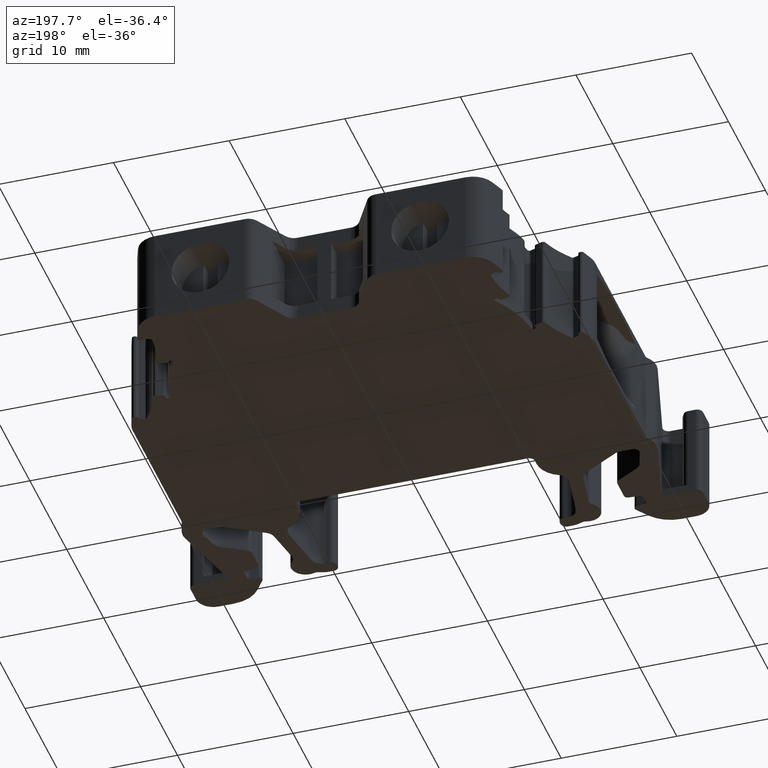
[diagram: clean part render]
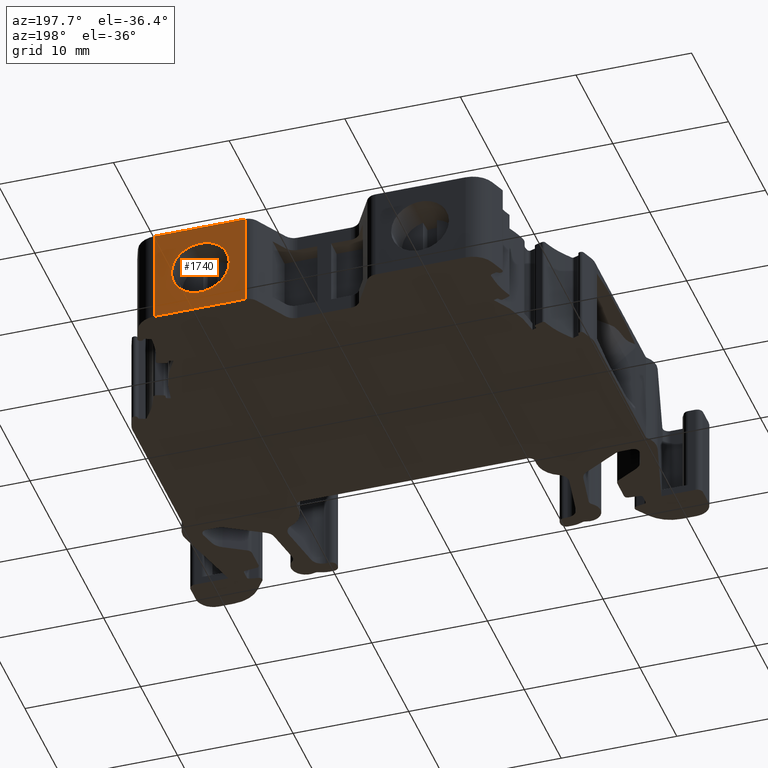
[diagram: same view with one face highlighted and labeled with its STEP entity id]
A machine part, auxiliary view. The second image highlights one B-rep face of the part: STEP entity #1740.
In plain terms, the highlighted planar face has unit normal (-0, -1, -0).
Its self-contained STEP definition (entity closure, byte-faithful):
#1131 = EDGE_CURVE ( 'NONE', #11786, #11818, #8824, .T. ) ;
#1327 = EDGE_CURVE ( 'NONE', #11513, #11482, #2718, .T. ) ;
#1580 = EDGE_CURVE ( 'NONE', #11648, #11571, #3573, .T. ) ;
#1611 = EDGE_CURVE ( 'NONE', #11482, #11648, #3743, .T. ) ;
#1616 = EDGE_CURVE ( 'NONE', #11571, #11513, #3703, .T. ) ;
#1740 = ADVANCED_FACE ( 'NONE', ( #4267, #4269 ), #4278, .F. ) ;
#1904 = DIRECTION ( 'NONE',  ( 3.335145295546514900E-014, 1.000000000000000000, 2.107248019183955000E-029 ) ) ;
#1939 = CARTESIAN_POINT ( 'NONE',  ( 1469.678072462780200, 957.4718304239120200, 1.164415195073409800 ) ) ;
#1952 = DIRECTION ( 'NONE',  ( -1.000000000000000000, 4.440892098500720800E-014, 0.0000000000000000000 ) ) ;
#2718 = LINE ( 'NONE', #2719, #8979 ) ;
#2719 = CARTESIAN_POINT ( 'NONE',  ( 1442.757947288439900, 957.4718304239130500, 5.263821926006720300 ) ) ;
#2793 = DIRECTION ( 'NONE',  ( -1.000000000000000000, -0.0000000000000000000, 0.0000000000000000000 ) ) ;
#3573 = LINE ( 'NONE', #3585, #9284 ) ;
#3579 = DIRECTION ( 'NONE',  ( 1.000000000000000000, -0.0000000000000000000, 3.944304526105060400E-030 ) ) ;
#3585 = CARTESIAN_POINT ( 'NONE',  ( 1441.684277564590500, 957.4718304239122500, -2.935584425860235900 ) ) ;
#3703 = LINE ( 'NONE', #3727, #9258 ) ;
#3723 = CARTESIAN_POINT ( 'NONE',  ( 1465.826193009918100, 957.4718304239123700, -3.335584383726600200 ) ) ;
#3724 = DIRECTION ( 'NONE',  ( 7.027978317731079600E-043, 2.107248019183955000E-029, -1.000000000000000000 ) ) ;
#3727 = CARTESIAN_POINT ( 'NONE',  ( 1473.620055561186100, 957.4718304239130500, -3.335584383726581100 ) ) ;
#3739 = DIRECTION ( 'NONE',  ( -6.318309496134340800E-016, 0.0000000000000000000, 1.000000000000000000 ) ) ;
#3743 = LINE ( 'NONE', #3723, #9296 ) ;
#4267 = FACE_BOUND ( 'NONE', #7679, .T. ) ;
#4268 = CARTESIAN_POINT ( 'NONE',  ( 1446.736100934150700, 957.4718304239130500, -3.335584383726600200 ) ) ;
#4269 = FACE_OUTER_BOUND ( 'NONE', #7643, .T. ) ;
#4270 = DIRECTION ( 'NONE',  ( 1.000000000000000000, -3.335145295546514900E-014, 0.0000000000000000000 ) ) ;
#4278 = PLANE ( 'NONE',  #10087 ) ;
#4295 = DIRECTION ( 'NONE',  ( -3.335145295546514900E-014, -1.000000000000000000, -2.107248019183955000E-029 ) ) ;
#7004 = DIRECTION ( 'NONE',  ( 3.335145295546514900E-014, 1.000000000000000000, 2.107248019183955000E-029 ) ) ;
#7012 = DIRECTION ( 'NONE',  ( -1.000000000000000000, 4.440892098500720800E-014, 0.0000000000000000000 ) ) ;
#7035 = CARTESIAN_POINT ( 'NONE',  ( 1469.678072462780200, 957.4718304239120200, 1.164415195073409800 ) ) ;
#7049 = ORIENTED_EDGE ( 'NONE', *, *, #1616, .F. ) ;
#7066 = ORIENTED_EDGE ( 'NONE', *, *, #1327, .F. ) ;
#7067 = ORIENTED_EDGE ( 'NONE', *, *, #1131, .F. ) ;
#7072 = ORIENTED_EDGE ( 'NONE', *, *, #1580, .F. ) ;
#7073 = ORIENTED_EDGE ( 'NONE', *, *, #1611, .F. ) ;
#7104 = ORIENTED_EDGE ( 'NONE', *, *, #11215, .F. ) ;
#7643 = EDGE_LOOP ( 'NONE', ( #7073, #7066, #7049, #7072 ) ) ;
#7679 = EDGE_LOOP ( 'NONE', ( #7104, #7067 ) ) ;
#7730 = AXIS2_PLACEMENT_3D ( 'NONE', #7035, #7004, #7012 ) ;
#7768 = CIRCLE ( 'NONE', #7730, 2.499999999999946700 ) ;
#8238 = CARTESIAN_POINT ( 'NONE',  ( 1465.826192982750900, 957.4718304239127100, 5.263821926006719400 ) ) ;
#8304 = CARTESIAN_POINT ( 'NONE',  ( 1473.620055561186100, 957.4718304239130500, 5.263821926006720300 ) ) ;
#8371 = CARTESIAN_POINT ( 'NONE',  ( 1473.620055561186100, 957.4718304239127100, -2.935584425860236800 ) ) ;
#8409 = CARTESIAN_POINT ( 'NONE',  ( 1465.826192982750900, 957.4718304239122500, -2.935584425860235900 ) ) ;
#8614 = CARTESIAN_POINT ( 'NONE',  ( 1472.178072462780200, 957.4718304239119100, 1.164415195073410100 ) ) ;
#8617 = CARTESIAN_POINT ( 'NONE',  ( 1467.178072462780400, 957.4718304239121400, 1.164415195073409800 ) ) ;
#8824 = CIRCLE ( 'NONE', #8826, 2.499999999999946700 ) ;
#8826 = AXIS2_PLACEMENT_3D ( 'NONE', #1939, #1904, #1952 ) ;
#8979 = VECTOR ( 'NONE', #2793, 1000.000000000000000 ) ;
#9258 = VECTOR ( 'NONE', #3739, 1000.000000000000000 ) ;
#9284 = VECTOR ( 'NONE', #3579, 1000.000000000000000 ) ;
#9296 = VECTOR ( 'NONE', #3724, 1000.000000000000000 ) ;
#10087 = AXIS2_PLACEMENT_3D ( 'NONE', #4268, #4295, #4270 ) ;
#11215 = EDGE_CURVE ( 'NONE', #11818, #11786, #7768, .T. ) ;
#11482 = VERTEX_POINT ( 'NONE', #8238 ) ;
#11513 = VERTEX_POINT ( 'NONE', #8304 ) ;
#11571 = VERTEX_POINT ( 'NONE', #8371 ) ;
#11648 = VERTEX_POINT ( 'NONE', #8409 ) ;
#11786 = VERTEX_POINT ( 'NONE', #8614 ) ;
#11818 = VERTEX_POINT ( 'NONE', #8617 ) ;